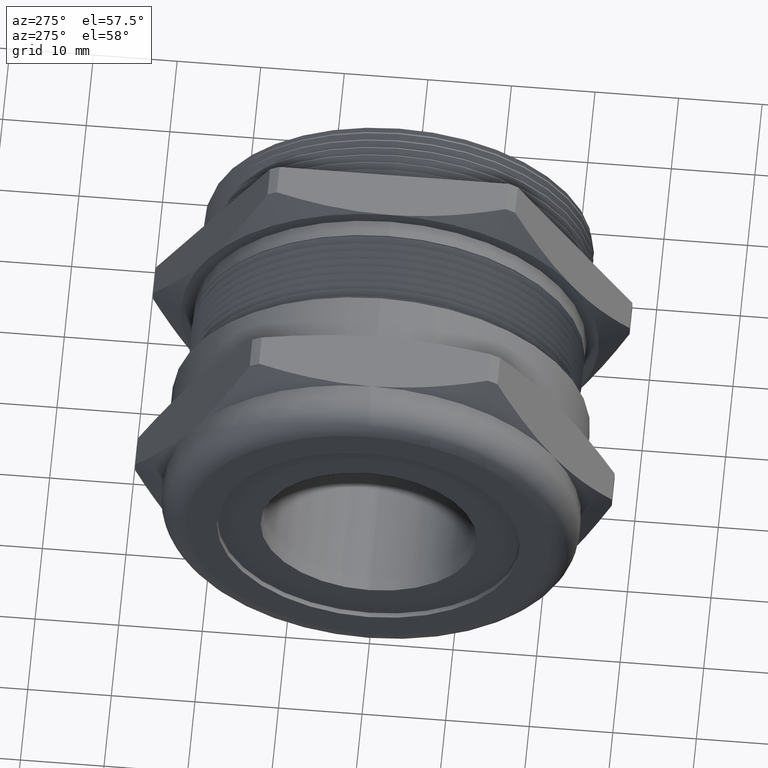
[diagram: clean part render]
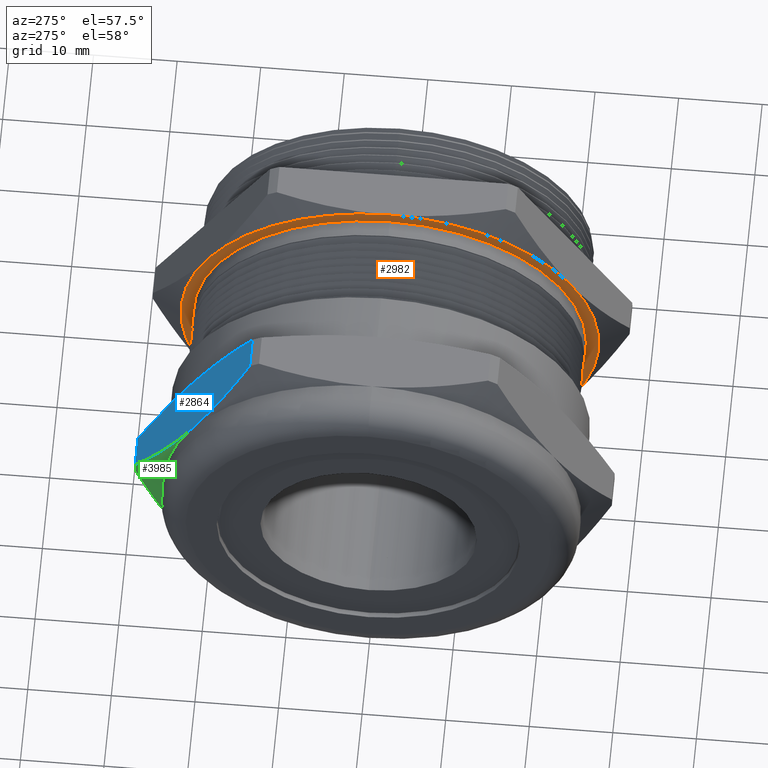
[diagram: same view with three faces highlighted in distinct colors, each labeled with its STEP entity id]
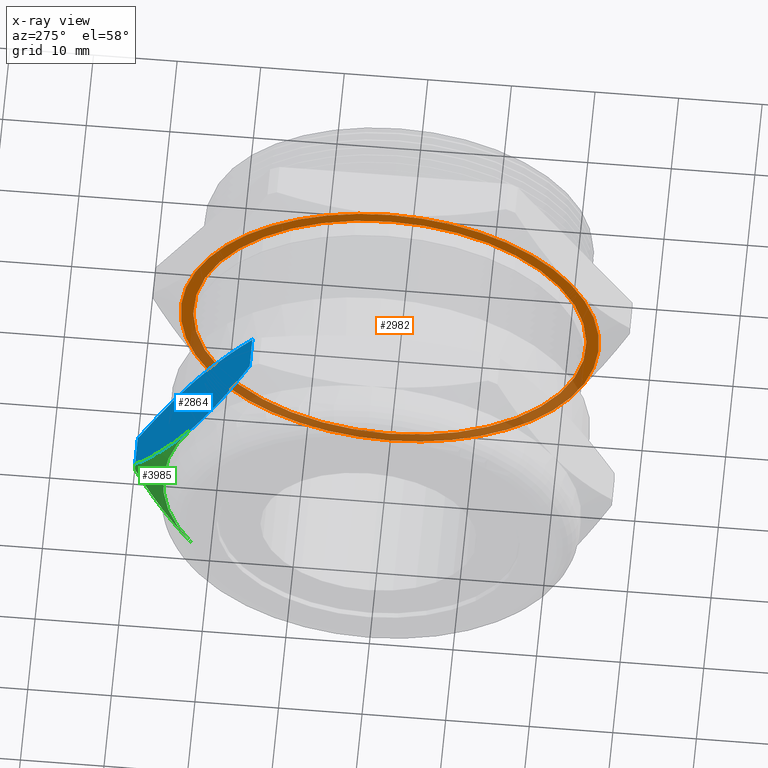
[diagram: x-ray of the same camera — body ghosted, the three highlighted faces saturated]
A machine part, auxiliary view with three faces highlighted in distinct colors.
The next image is the same camera in x-ray (body ghosted, the three faces saturated) — at least one of them is partly hidden behind the body in this view.
Their STEP definitions:

[orange] entity #2982 — the highlighted planar face has unit normal (1, 0, 0).
#331 = CARTESIAN_POINT ( 'NONE',  ( 0.3141999999999997600, 0.0000000000000000000, -0.9849999999999997600 ) ) ;
#332 = CARTESIAN_POINT ( 'NONE',  ( 0.3141999999999997600, 0.8530350227276725100, -0.4924999999999998800 ) ) ;
#333 = CARTESIAN_POINT ( 'NONE',  ( 0.3141999999999997600, -0.8530350227276721800, -0.4925000000000000500 ) ) ;
#344 = DIRECTION ( 'NONE',  ( 0.0000000000000000000, 0.0000000000000000000, 1.000000000000000000 ) ) ;
#345 = DIRECTION ( 'NONE',  ( -1.000000000000000000, 0.0000000000000000000, 0.0000000000000000000 ) ) ;
#346 = CARTESIAN_POINT ( 'NONE',  ( 0.3141999999999997600, 0.0000000000000000000, 0.0000000000000000000 ) ) ;
#347 = AXIS2_PLACEMENT_3D ( 'NONE', #346, #345, #344 ) ;
#348 = CIRCLE ( 'NONE', #347, 0.9849999999999997600 ) ;
#364 = DIRECTION ( 'NONE',  ( 0.0000000000000000000, 0.0000000000000000000, 1.000000000000000000 ) ) ;
#365 = DIRECTION ( 'NONE',  ( -1.000000000000000000, 0.0000000000000000000, 0.0000000000000000000 ) ) ;
#366 = AXIS2_PLACEMENT_3D ( 'NONE', #376, #365, #364 ) ;
#367 = CIRCLE ( 'NONE', #366, 0.9849999999999997600 ) ;
#376 = CARTESIAN_POINT ( 'NONE',  ( 0.3141999999999997600, 0.0000000000000000000, 0.0000000000000000000 ) ) ;
#432 = DIRECTION ( 'NONE',  ( 0.0000000000000000000, 0.0000000000000000000, -1.000000000000000000 ) ) ;
#433 = DIRECTION ( 'NONE',  ( 1.000000000000000000, 0.0000000000000000000, 0.0000000000000000000 ) ) ;
#434 = AXIS2_PLACEMENT_3D ( 'NONE', #445, #433, #432 ) ;
#441 = PLANE ( 'NONE',  #434 ) ;
#442 = FACE_BOUND ( 'NONE', #4158, .T. ) ;
#443 = FACE_OUTER_BOUND ( 'NONE', #2957, .T. ) ;
#445 = CARTESIAN_POINT ( 'NONE',  ( 0.3141999999999997600, 0.9250000000000001600, 0.0000000000000000000 ) ) ;
#446 = DIRECTION ( 'NONE',  ( 0.0000000000000000000, 0.0000000000000000000, 1.000000000000000000 ) ) ;
#447 = DIRECTION ( 'NONE',  ( -1.000000000000000000, 0.0000000000000000000, 0.0000000000000000000 ) ) ;
#448 = CARTESIAN_POINT ( 'NONE',  ( 0.3141999999999997600, 0.0000000000000000000, 0.0000000000000000000 ) ) ;
#449 = AXIS2_PLACEMENT_3D ( 'NONE', #448, #447, #446 ) ;
#450 = CIRCLE ( 'NONE', #449, 0.9849999999999997600 ) ;
#475 = CARTESIAN_POINT ( 'NONE',  ( 0.3141999999999997600, 0.0000000000000000000, -0.9260000000000000500 ) ) ;
#1523 = CARTESIAN_POINT ( 'NONE',  ( 0.3141999999999997600, 1.134022936010449300E-016, 0.9260000000000000500 ) ) ;
#1527 = DIRECTION ( 'NONE',  ( 0.0000000000000000000, 0.0000000000000000000, -1.000000000000000000 ) ) ;
#1528 = DIRECTION ( 'NONE',  ( -1.000000000000000000, 0.0000000000000000000, 0.0000000000000000000 ) ) ;
#1529 = CARTESIAN_POINT ( 'NONE',  ( 0.3141999999999997600, 0.0000000000000000000, 0.0000000000000000000 ) ) ;
#1530 = AXIS2_PLACEMENT_3D ( 'NONE', #1529, #1528, #1527 ) ;
#1531 = CIRCLE ( 'NONE', #1530, 0.9260000000000000500 ) ;
#2083 = CARTESIAN_POINT ( 'NONE',  ( 0.3141999999999997600, 0.0000000000000000000, 0.9850000000000001000 ) ) ;
#2106 = CARTESIAN_POINT ( 'NONE',  ( 0.3141999999999997600, 0.8530350227276718400, 0.4925000000000001600 ) ) ;
#2107 = DIRECTION ( 'NONE',  ( 0.0000000000000000000, 0.0000000000000000000, 1.000000000000000000 ) ) ;
#2108 = DIRECTION ( 'NONE',  ( -1.000000000000000000, 0.0000000000000000000, 0.0000000000000000000 ) ) ;
#2109 = CARTESIAN_POINT ( 'NONE',  ( 0.3141999999999997600, 0.0000000000000000000, 0.0000000000000000000 ) ) ;
#2110 = AXIS2_PLACEMENT_3D ( 'NONE', #2109, #2108, #2107 ) ;
#2111 = CIRCLE ( 'NONE', #2110, 0.9849999999999997600 ) ;
#2117 = DIRECTION ( 'NONE',  ( 0.0000000000000000000, 0.0000000000000000000, -1.000000000000000000 ) ) ;
#2118 = DIRECTION ( 'NONE',  ( -1.000000000000000000, 0.0000000000000000000, 0.0000000000000000000 ) ) ;
#2119 = CARTESIAN_POINT ( 'NONE',  ( 0.3141999999999997600, 0.0000000000000000000, 0.0000000000000000000 ) ) ;
#2120 = AXIS2_PLACEMENT_3D ( 'NONE', #2119, #2118, #2117 ) ;
#2121 = CIRCLE ( 'NONE', #2120, 0.9260000000000000500 ) ;
#2132 = DIRECTION ( 'NONE',  ( 0.0000000000000000000, 0.0000000000000000000, 1.000000000000000000 ) ) ;
#2133 = DIRECTION ( 'NONE',  ( -1.000000000000000000, 0.0000000000000000000, 0.0000000000000000000 ) ) ;
#2134 = CARTESIAN_POINT ( 'NONE',  ( 0.3141999999999997600, 0.0000000000000000000, 0.0000000000000000000 ) ) ;
#2135 = AXIS2_PLACEMENT_3D ( 'NONE', #2134, #2133, #2132 ) ;
#2136 = CIRCLE ( 'NONE', #2135, 0.9849999999999997600 ) ;
#2137 = DIRECTION ( 'NONE',  ( 0.0000000000000000000, 0.0000000000000000000, 1.000000000000000000 ) ) ;
#2138 = DIRECTION ( 'NONE',  ( -1.000000000000000000, 0.0000000000000000000, 0.0000000000000000000 ) ) ;
#2139 = AXIS2_PLACEMENT_3D ( 'NONE', #2150, #2138, #2137 ) ;
#2148 = CIRCLE ( 'NONE', #2139, 0.9849999999999997600 ) ;
#2149 = CARTESIAN_POINT ( 'NONE',  ( 0.3141999999999997600, -0.8530350227276718400, 0.4925000000000001600 ) ) ;
#2150 = CARTESIAN_POINT ( 'NONE',  ( 0.3141999999999997600, 0.0000000000000000000, 0.0000000000000000000 ) ) ;
#2947 = EDGE_CURVE ( 'NONE', #2951, #4173, #348, .T. ) ;
#2951 = VERTEX_POINT ( 'NONE', #333 ) ;
#2952 = ORIENTED_EDGE ( 'NONE', *, *, #2947, .T. ) ;
#2955 = VERTEX_POINT ( 'NONE', #332 ) ;
#2956 = VERTEX_POINT ( 'NONE', #331 ) ;
#2957 = EDGE_LOOP ( 'NONE', ( #2958, #2959, #2952, #4175, #4169, #4161 ) ) ;
#2958 = ORIENTED_EDGE ( 'NONE', *, *, #2972, .T. ) ;
#2959 = ORIENTED_EDGE ( 'NONE', *, *, #2965, .T. ) ;
#2965 = EDGE_CURVE ( 'NONE', #2956, #2951, #367, .T. ) ;
#2972 = EDGE_CURVE ( 'NONE', #2955, #2956, #450, .T. ) ;
#2982 = ADVANCED_FACE ( 'NONE', ( #443, #442 ), #441, .F. ) ;
#2993 = VERTEX_POINT ( 'NONE', #475 ) ;
#3799 = EDGE_CURVE ( 'NONE', #3802, #2993, #1531, .T. ) ;
#3802 = VERTEX_POINT ( 'NONE', #1523 ) ;
#4129 = ORIENTED_EDGE ( 'NONE', *, *, #3799, .F. ) ;
#4140 = VERTEX_POINT ( 'NONE', #2083 ) ;
#4154 = ORIENTED_EDGE ( 'NONE', *, *, #4155, .F. ) ;
#4155 = EDGE_CURVE ( 'NONE', #2993, #3802, #2121, .T. ) ;
#4158 = EDGE_LOOP ( 'NONE', ( #4154, #4129 ) ) ;
#4159 = EDGE_CURVE ( 'NONE', #4160, #2955, #2111, .T. ) ;
#4160 = VERTEX_POINT ( 'NONE', #2106 ) ;
#4161 = ORIENTED_EDGE ( 'NONE', *, *, #4159, .T. ) ;
#4169 = ORIENTED_EDGE ( 'NONE', *, *, #4170, .T. ) ;
#4170 = EDGE_CURVE ( 'NONE', #4140, #4160, #2148, .T. ) ;
#4173 = VERTEX_POINT ( 'NONE', #2149 ) ;
#4175 = ORIENTED_EDGE ( 'NONE', *, *, #4178, .T. ) ;
#4178 = EDGE_CURVE ( 'NONE', #4173, #4140, #2136, .T. ) ;

[blue] entity #2864 — the highlighted planar face has unit normal (0, 0.866, 0.5).
#44 = CARTESIAN_POINT ( 'NONE',  ( -0.4176914953053087500, 0.5834615587146129200, 0.9594149360429586900 ) ) ;
#50 = DIRECTION ( 'NONE',  ( 1.000000000000000000, 0.0000000000000000000, 0.0000000000000000000 ) ) ;
#51 = VECTOR ( 'NONE', #50, 39.37007874015748100 ) ;
#52 = CARTESIAN_POINT ( 'NONE',  ( -3.851301226561272300, 0.5834615587146128000, 0.9594149360429584700 ) ) ;
#53 = LINE ( 'NONE', #52, #51 ) ;
#55 = CARTESIAN_POINT ( 'NONE',  ( -0.5638833978787508600, 0.5834615587146129200, 0.9594149360429586900 ) ) ;
#91 = DIRECTION ( 'NONE',  ( 1.000000000000000000, 0.0000000000000000000, 0.0000000000000000000 ) ) ;
#92 = VECTOR ( 'NONE', #91, 39.37007874015748100 ) ;
#93 = CARTESIAN_POINT ( 'NONE',  ( -3.851301226561272300, 1.122608486740730700, 0.02558506395704161100 ) ) ;
#98 = LINE ( 'NONE', #93, #92 ) ;
#133 = CARTESIAN_POINT ( 'NONE',  ( -0.6434999999999998500, 0.8530350227276718400, 0.4925000000000001600 ) ) ;
#134 = CARTESIAN_POINT ( 'NONE',  ( -0.6434999999999997400, 0.8988273694690289700, 0.4131853288461582200 ) ) ;
#135 = CARTESIAN_POINT ( 'NONE',  ( -0.6360160669333846400, 0.9441327400570340700, 0.3347141251319967800 ) ) ;
#136 = CARTESIAN_POINT ( 'NONE',  ( -0.6084201487789702200, 1.033921779576593400, 0.1791949467213112500 ) ) ;
#137 = CARTESIAN_POINT ( 'NONE',  ( -0.5883873924700293600, 1.078410603889096600, 0.1021380426430488800 ) ) ;
#138 = CARTESIAN_POINT ( 'NONE',  ( -0.5638833978787508600, 1.122608486740730900, 0.02558506395704170400 ) ) ;
#139 = B_SPLINE_CURVE_WITH_KNOTS ( 'NONE', 3,
 ( #138, #137, #136, #135, #134, #133 ),
 .UNSPECIFIED., .F., .F.,
 ( 4, 2, 4 ),
 ( 2.372706640769966500E-007, 0.006920634397473350400, 0.01384103152428262300 ),
 .UNSPECIFIED. ) ;
#165 = CARTESIAN_POINT ( 'NONE',  ( -3.851301226561272300, 1.122608486740730900, 0.02558506395704166300 ) ) ;
#166 = PLANE ( 'NONE',  #168 ) ;
#168 = AXIS2_PLACEMENT_3D ( 'NONE', #165, #205, #204 ) ;
#169 = FACE_OUTER_BOUND ( 'NONE', #2826, .T. ) ;
#170 = CARTESIAN_POINT ( 'NONE',  ( -0.3674999999999998300, 0.8530350227276717300, 0.4924999999999999400 ) ) ;
#171 = CARTESIAN_POINT ( 'NONE',  ( -0.3674999999999999900, 0.8081061120588287600, 0.5703191560071597700 ) ) ;
#172 = CARTESIAN_POINT ( 'NONE',  ( -0.3720504794872304100, 0.7631772013899854600, 0.6481383120143192600 ) ) ;
#173 = CARTESIAN_POINT ( 'NONE',  ( -0.3893171509596629100, 0.6733193800522993000, 0.8037766240286390300 ) ) ;
#174 = CARTESIAN_POINT ( 'NONE',  ( -0.4019883081776244300, 0.6283904693834556600, 0.8815957800357985300 ) ) ;
#175 = CARTESIAN_POINT ( 'NONE',  ( -0.4176914953053087500, 0.5834615587146129200, 0.9594149360429586900 ) ) ;
#176 = B_SPLINE_CURVE_WITH_KNOTS ( 'NONE', 3,
 ( #175, #174, #173, #172, #171, #170 ),
 .UNSPECIFIED., .F., .F.,
 ( 4, 2, 4 ),
 ( 2.309401076701455100E-007, 0.006847396926039369700, 0.01369456291197107000 ),
 .UNSPECIFIED. ) ;
#178 = CARTESIAN_POINT ( 'NONE',  ( -0.4176914953053087500, 1.122608486740731100, 0.02558506395704161400 ) ) ;
#179 = CARTESIAN_POINT ( 'NONE',  ( -0.4019883081776243800, 1.077679576071887600, 0.1034042199642013200 ) ) ;
#180 = CARTESIAN_POINT ( 'NONE',  ( -0.3893171509596631300, 1.032750665403044700, 0.1812233759713610400 ) ) ;
#181 = CARTESIAN_POINT ( 'NONE',  ( -0.3720504794872306300, 0.9428928440653583400, 0.3368616879856805600 ) ) ;
#182 = CARTESIAN_POINT ( 'NONE',  ( -0.3675000000000000500, 0.8979639333965152600, 0.4146808439928402800 ) ) ;
#183 = CARTESIAN_POINT ( 'NONE',  ( -0.3674999999999998300, 0.8530350227276717300, 0.4924999999999999400 ) ) ;
#184 = B_SPLINE_CURVE_WITH_KNOTS ( 'NONE', 3,
 ( #183, #182, #181, #180, #179, #178 ),
 .UNSPECIFIED., .F., .F.,
 ( 4, 2, 4 ),
 ( 0.01369456291197107000, 0.02054172889790277200, 0.02738889488383446800 ),
 .UNSPECIFIED. ) ;
#204 = DIRECTION ( 'NONE',  ( 0.0000000000000000000, -0.5000000000000001100, 0.8660254037844384900 ) ) ;
#205 = DIRECTION ( 'NONE',  ( 0.0000000000000000000, 0.8660254037844386000, 0.5000000000000002200 ) ) ;
#1105 = CARTESIAN_POINT ( 'NONE',  ( -0.6434999999999998500, 0.8530350227276718400, 0.4925000000000001600 ) ) ;
#1752 = CARTESIAN_POINT ( 'NONE',  ( -0.3674999999999998300, 0.8530350227276717300, 0.4924999999999999400 ) ) ;
#2576 = CARTESIAN_POINT ( 'NONE',  ( -0.6083227030970327400, 0.6719016161651613100, 0.8062322631142986300 ) ) ;
#2577 = CARTESIAN_POINT ( 'NONE',  ( -0.6290601966918978300, 0.7392700033039285600, 0.6895467937659836000 ) ) ;
#2578 = CARTESIAN_POINT ( 'NONE',  ( -0.6344202564174890000, 0.7618541475015298000, 0.6504299085702761600 ) ) ;
#2579 = CARTESIAN_POINT ( 'NONE',  ( -0.6416461877604365800, 0.8073105691293308600, 0.5716970767806517400 ) ) ;
#2580 = CARTESIAN_POINT ( 'NONE',  ( -0.6434999999999995200, 0.8302599227912919000, 0.5319476302372681000 ) ) ;
#2581 = CARTESIAN_POINT ( 'NONE',  ( -0.6434999999999998500, 0.8530350227276718400, 0.4925000000000001600 ) ) ;
#2583 = B_SPLINE_CURVE_WITH_KNOTS ( 'NONE', 3,
 ( #2581, #2580, #2579, #2578, #2577, #2576, #2618, #2617 ),
 .UNSPECIFIED., .F., .F.,
 ( 4, 2, 2, 4 ),
 ( 0.01384103152428262300, 0.01728293278897950100, 0.02072483405367638000, 0.02760863658307013300 ),
 .UNSPECIFIED. ) ;
#2617 = CARTESIAN_POINT ( 'NONE',  ( -0.5638833978787508600, 0.5834615587146129200, 0.9594149360429586900 ) ) ;
#2618 = CARTESIAN_POINT ( 'NONE',  ( -0.5882992650440843600, 0.6275004860280697400, 0.8831372764252186600 ) ) ;
#2795 = VERTEX_POINT ( 'NONE', #3606 ) ;
#2800 = VERTEX_POINT ( 'NONE', #3594 ) ;
#2815 = VERTEX_POINT ( 'NONE', #55 ) ;
#2818 = EDGE_CURVE ( 'NONE', #2815, #2821, #53, .T. ) ;
#2821 = VERTEX_POINT ( 'NONE', #44 ) ;
#2826 = EDGE_LOOP ( 'NONE', ( #2878, #2868, #2860, #2848, #2858, #4428 ) ) ;
#2827 = EDGE_CURVE ( 'NONE', #2795, #2800, #98, .T. ) ;
#2848 = ORIENTED_EDGE ( 'NONE', *, *, #2827, .F. ) ;
#2855 = EDGE_CURVE ( 'NONE', #2795, #3332, #139, .T. ) ;
#2858 = ORIENTED_EDGE ( 'NONE', *, *, #2855, .T. ) ;
#2859 = EDGE_CURVE ( 'NONE', #3913, #2800, #184, .T. ) ;
#2860 = ORIENTED_EDGE ( 'NONE', *, *, #2859, .T. ) ;
#2861 = EDGE_CURVE ( 'NONE', #2821, #3913, #176, .T. ) ;
#2864 = ADVANCED_FACE ( 'NONE', ( #169 ), #166, .T. ) ;
#2868 = ORIENTED_EDGE ( 'NONE', *, *, #2861, .T. ) ;
#2878 = ORIENTED_EDGE ( 'NONE', *, *, #2818, .T. ) ;
#3332 = VERTEX_POINT ( 'NONE', #1105 ) ;
#3594 = CARTESIAN_POINT ( 'NONE',  ( -0.4176914953053087500, 1.122608486740731100, 0.02558506395704161400 ) ) ;
#3606 = CARTESIAN_POINT ( 'NONE',  ( -0.5638833978787508600, 1.122608486740730900, 0.02558506395704170400 ) ) ;
#3913 = VERTEX_POINT ( 'NONE', #1752 ) ;
#4426 = EDGE_CURVE ( 'NONE', #3332, #2815, #2583, .T. ) ;
#4428 = ORIENTED_EDGE ( 'NONE', *, *, #4426, .T. ) ;

[green] entity #3985 — the highlighted conical surface has half-angle 60 deg.
#133 = CARTESIAN_POINT ( 'NONE',  ( -0.6434999999999998500, 0.8530350227276718400, 0.4925000000000001600 ) ) ;
#134 = CARTESIAN_POINT ( 'NONE',  ( -0.6434999999999997400, 0.8988273694690289700, 0.4131853288461582200 ) ) ;
#135 = CARTESIAN_POINT ( 'NONE',  ( -0.6360160669333846400, 0.9441327400570340700, 0.3347141251319967800 ) ) ;
#136 = CARTESIAN_POINT ( 'NONE',  ( -0.6084201487789702200, 1.033921779576593400, 0.1791949467213112500 ) ) ;
#137 = CARTESIAN_POINT ( 'NONE',  ( -0.5883873924700293600, 1.078410603889096600, 0.1021380426430488800 ) ) ;
#138 = CARTESIAN_POINT ( 'NONE',  ( -0.5638833978787508600, 1.122608486740730900, 0.02558506395704170400 ) ) ;
#139 = B_SPLINE_CURVE_WITH_KNOTS ( 'NONE', 3,
 ( #138, #137, #136, #135, #134, #133 ),
 .UNSPECIFIED., .F., .F.,
 ( 4, 2, 4 ),
 ( 2.372706640769966500E-007, 0.006920634397473350400, 0.01384103152428262300 ),
 .UNSPECIFIED. ) ;
#187 = CARTESIAN_POINT ( 'NONE',  ( -0.5638833978787508600, 1.122608486740731100, -0.02558506395704166600 ) ) ;
#188 = CARTESIAN_POINT ( 'NONE',  ( -0.5882992650440844700, 1.078569559427273900, -0.1018627235747813900 ) ) ;
#189 = CARTESIAN_POINT ( 'NONE',  ( -0.6083227030970324000, 1.034168429290182700, -0.1787677368857015500 ) ) ;
#190 = CARTESIAN_POINT ( 'NONE',  ( -0.6290601966918978300, 0.9668000421514154600, -0.2954532062340165000 ) ) ;
#191 = CARTESIAN_POINT ( 'NONE',  ( -0.6344202564174892300, 0.9442158979538143300, -0.3345700914297237700 ) ) ;
#192 = CARTESIAN_POINT ( 'NONE',  ( -0.6416461877604366900, 0.8987594763260128300, -0.4133029232193483100 ) ) ;
#193 = CARTESIAN_POINT ( 'NONE',  ( -0.6434999999999995200, 0.8758101226640516700, -0.4530523697627316700 ) ) ;
#194 = CARTESIAN_POINT ( 'NONE',  ( -0.6434999999999998500, 0.8530350227276725100, -0.4924999999999998800 ) ) ;
#195 = B_SPLINE_CURVE_WITH_KNOTS ( 'NONE', 3,
 ( #194, #193, #192, #191, #190, #189, #188, #187 ),
 .UNSPECIFIED., .F., .F.,
 ( 4, 2, 2, 4 ),
 ( 0.01384103152428261100, 0.01728293278897948700, 0.02072483405367636000, 0.02760863658307010500 ),
 .UNSPECIFIED. ) ;
#1095 = DIRECTION ( 'NONE',  ( 0.0000000000000000000, 0.0000000000000000000, 1.000000000000000000 ) ) ;
#1096 = DIRECTION ( 'NONE',  ( -1.000000000000000000, 0.0000000000000000000, 0.0000000000000000000 ) ) ;
#1097 = CARTESIAN_POINT ( 'NONE',  ( -0.6434999999999998500, 0.0000000000000000000, 0.0000000000000000000 ) ) ;
#1098 = AXIS2_PLACEMENT_3D ( 'NONE', #1097, #1096, #1095 ) ;
#1099 = CIRCLE ( 'NONE', #1098, 0.9849999999999999900 ) ;
#1105 = CARTESIAN_POINT ( 'NONE',  ( -0.6434999999999998500, 0.8530350227276718400, 0.4925000000000001600 ) ) ;
#1154 = CARTESIAN_POINT ( 'NONE',  ( -0.6434999999999998500, 0.8530350227276725100, -0.4924999999999998800 ) ) ;
#1790 = DIRECTION ( 'NONE',  ( 0.0000000000000000000, 0.0000000000000000000, 1.000000000000000000 ) ) ;
#1791 = DIRECTION ( 'NONE',  ( 1.000000000000000000, 0.0000000000000000000, 0.0000000000000000000 ) ) ;
#1792 = AXIS2_PLACEMENT_3D ( 'NONE', #1799, #1791, #1790 ) ;
#1794 = CONICAL_SURFACE ( 'NONE', #1792, 0.9849999999999997600, 1.047197551196600100 ) ;
#1795 = FACE_OUTER_BOUND ( 'NONE', #3981, .T. ) ;
#1799 = CARTESIAN_POINT ( 'NONE',  ( -0.6434999999999998500, 0.0000000000000000000, 0.0000000000000000000 ) ) ;
#2795 = VERTEX_POINT ( 'NONE', #3606 ) ;
#2796 = EDGE_CURVE ( 'NONE', #2795, #2798, #3605, .T. ) ;
#2798 = VERTEX_POINT ( 'NONE', #3600 ) ;
#2855 = EDGE_CURVE ( 'NONE', #2795, #3332, #139, .T. ) ;
#2871 = EDGE_CURVE ( 'NONE', #3384, #2798, #195, .T. ) ;
#3332 = VERTEX_POINT ( 'NONE', #1105 ) ;
#3334 = EDGE_CURVE ( 'NONE', #3332, #3384, #1099, .T. ) ;
#3384 = VERTEX_POINT ( 'NONE', #1154 ) ;
#3600 = CARTESIAN_POINT ( 'NONE',  ( -0.5638833978787508600, 1.122608486740731100, -0.02558506395704166600 ) ) ;
#3601 = DIRECTION ( 'NONE',  ( 0.0000000000000000000, -4.618527782440650600E-014, -1.000000000000000000 ) ) ;
#3602 = DIRECTION ( 'NONE',  ( -1.000000000000000000, 0.0000000000000000000, 0.0000000000000000000 ) ) ;
#3603 = CARTESIAN_POINT ( 'NONE',  ( -0.5638833978787508600, 0.0000000000000000000, 0.0000000000000000000 ) ) ;
#3604 = AXIS2_PLACEMENT_3D ( 'NONE', #3603, #3602, #3601 ) ;
#3605 = CIRCLE ( 'NONE', #3604, 1.122900000000000000 ) ;
#3606 = CARTESIAN_POINT ( 'NONE',  ( -0.5638833978787508600, 1.122608486740730900, 0.02558506395704170400 ) ) ;
#3981 = EDGE_LOOP ( 'NONE', ( #3982, #3983, #3987, #3988 ) ) ;
#3982 = ORIENTED_EDGE ( 'NONE', *, *, #3334, .F. ) ;
#3983 = ORIENTED_EDGE ( 'NONE', *, *, #2855, .F. ) ;
#3985 = ADVANCED_FACE ( 'NONE', ( #1795 ), #1794, .T. ) ;
#3987 = ORIENTED_EDGE ( 'NONE', *, *, #2796, .T. ) ;
#3988 = ORIENTED_EDGE ( 'NONE', *, *, #2871, .F. ) ;